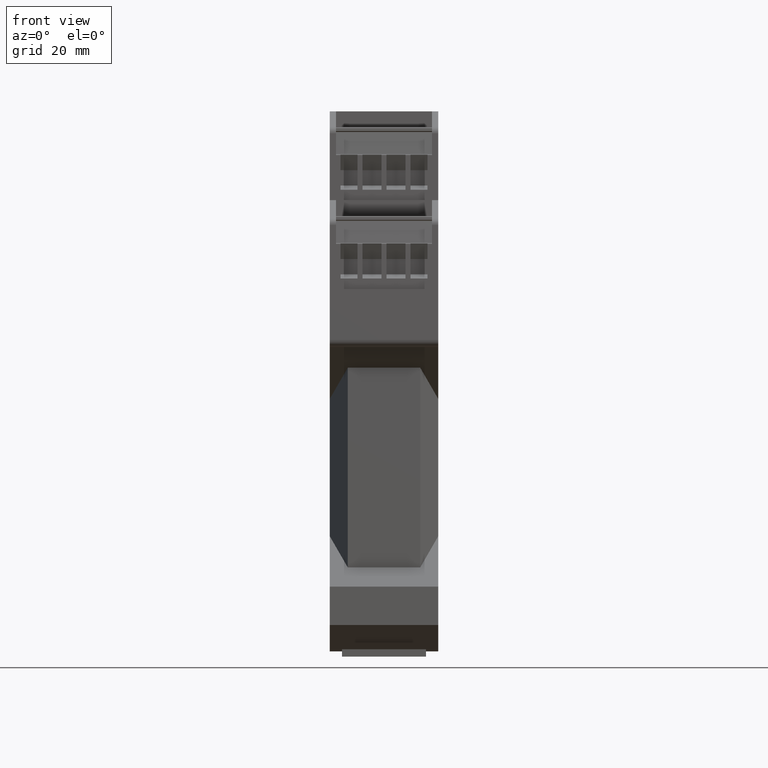
[diagram: clean part render]
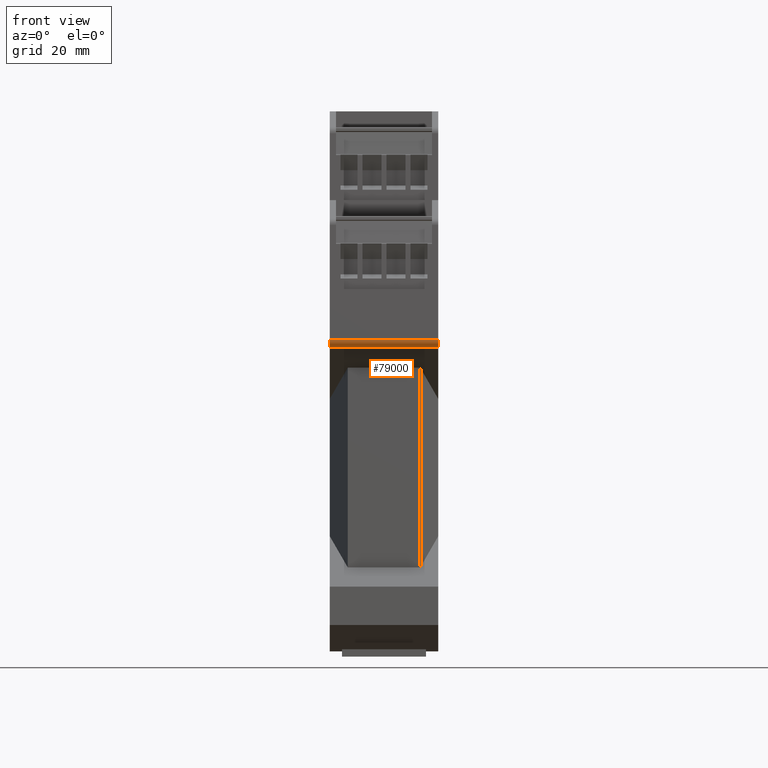
[diagram: same view with one face highlighted and labeled with its STEP entity id]
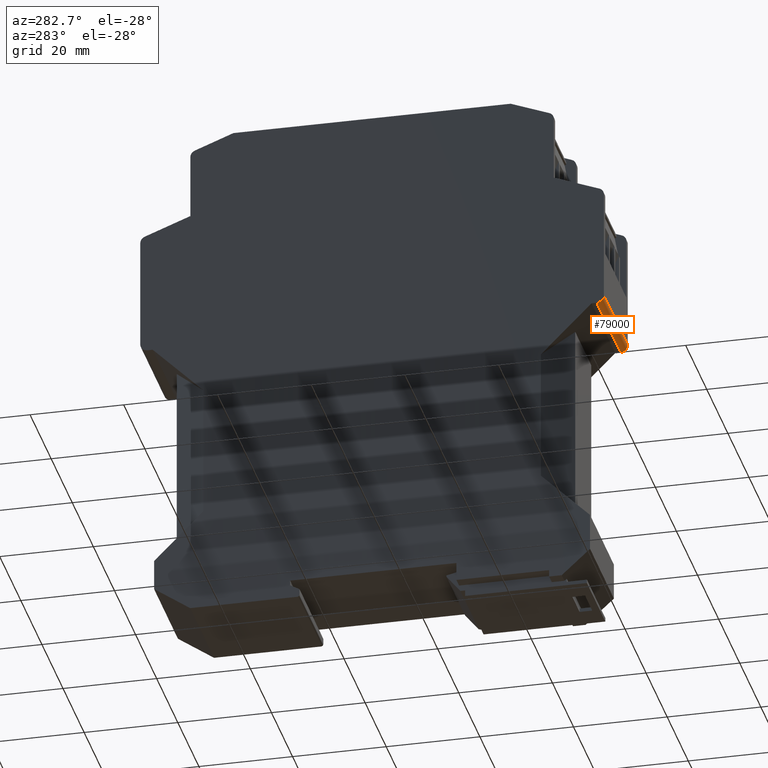
[diagram: same view with one face highlighted and labeled with its STEP entity id]
A machine part, front view. The second image highlights one B-rep face of the part: STEP entity #79000.
A second angle (auxiliary view) of the same face is appended — the face is thin or edge-on in the first view.
In plain terms, the highlighted cylindrical surface (edge-blend (fillet) strip) has radius 1.5 mm, axis along (-1, 0, 0).
Its self-contained STEP definition (entity closure, byte-faithful):
#840=CARTESIAN_POINT('',(-47.9999999999994,57.9000000000015,22.6));
#850=VERTEX_POINT('',#840);
#880=CARTESIAN_POINT('',(-47.9999999999994,59.4000000000015,22.6));
#890=DIRECTION('',(0.,0.,-1.));
#900=DIRECTION('',(-1.,0.,0.));
#910=AXIS2_PLACEMENT_3D('',#880,#890,#900);
#920=CIRCLE('',#910,1.5);
#930=CARTESIAN_POINT('',(-49.4999999999994,59.4000000000015,22.6));
#940=VERTEX_POINT('',#930);
#950=EDGE_CURVE('',#850,#940,#920,.T.);
#4220=CARTESIAN_POINT('',(-49.4999999999994,59.4000000000015,
-3.5527136788005E-15));
#4230=VERTEX_POINT('',#4220);
#4260=CARTESIAN_POINT('',(-47.9999999999994,59.4000000000015,
-3.5527136788005E-15));
#4270=DIRECTION('',(0.,0.,-1.));
#4280=DIRECTION('',(-1.,0.,0.));
#4290=AXIS2_PLACEMENT_3D('',#4260,#4270,#4280);
#4300=CIRCLE('',#4290,1.5);
#4310=CARTESIAN_POINT('',(-47.9999999999996,57.9000000000015,
-3.5527136788005E-15));
#4320=VERTEX_POINT('',#4310);
#4330=EDGE_CURVE('',#4320,#4230,#4300,.T.);
#77820=CARTESIAN_POINT('',(-49.4999999999994,59.4000000000015,22.6));
#77830=DIRECTION('',(0.,0.,-1.));
#77840=VECTOR('',#77830,1.);
#77850=LINE('',#77820,#77840);
#77860=EDGE_CURVE('',#940,#4230,#77850,.T.);
#78840=CARTESIAN_POINT('',(-47.9999999999994,59.4000000000015,22.6));
#78850=DIRECTION('',(0.,0.,-1.));
#78860=DIRECTION('',(-1.,0.,0.));
#78870=AXIS2_PLACEMENT_3D('',#78840,#78850,#78860);
#78880=CYLINDRICAL_SURFACE('',#78870,1.5);
#78890=CARTESIAN_POINT('',(-47.9999999999996,57.9000000000015,22.6));
#78900=DIRECTION('',(0.,0.,-1.));
#78910=VECTOR('',#78900,1.);
#78920=LINE('',#78890,#78910);
#78930=EDGE_CURVE('',#850,#4320,#78920,.T.);
#78940=ORIENTED_EDGE('',*,*,#78930,.F.);
#78950=ORIENTED_EDGE('',*,*,#4330,.F.);
#78960=ORIENTED_EDGE('',*,*,#77860,.T.);
#78970=ORIENTED_EDGE('',*,*,#950,.T.);
#78980=EDGE_LOOP('',(#78970,#78960,#78950,#78940));
#78990=FACE_OUTER_BOUND('',#78980,.T.);
#79000=ADVANCED_FACE('',(#78990),#78880,.T.);